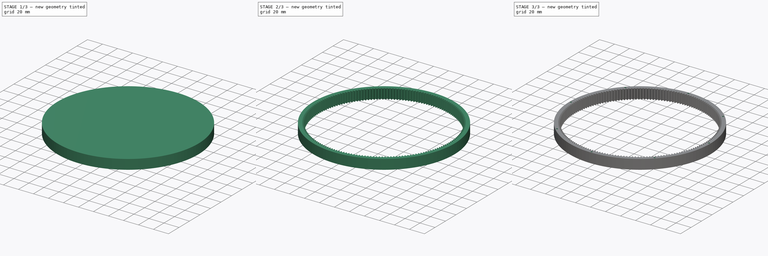
[diagram: build sequence overview — one tinted view per stage of 3, left to right]
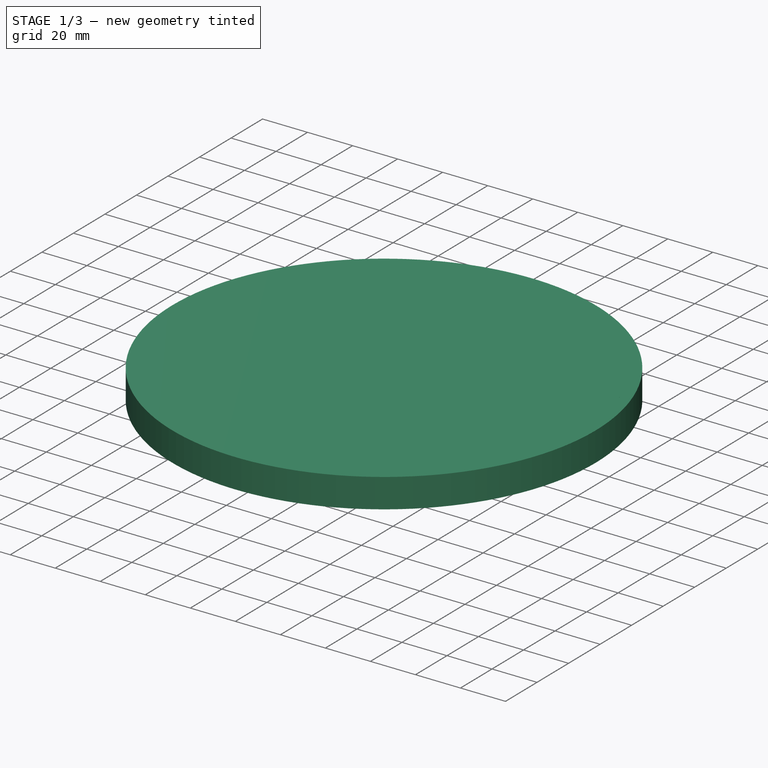
[diagram: stage 1 of 3 — iso view after this stage's code; geometry added in this stage tinted green]
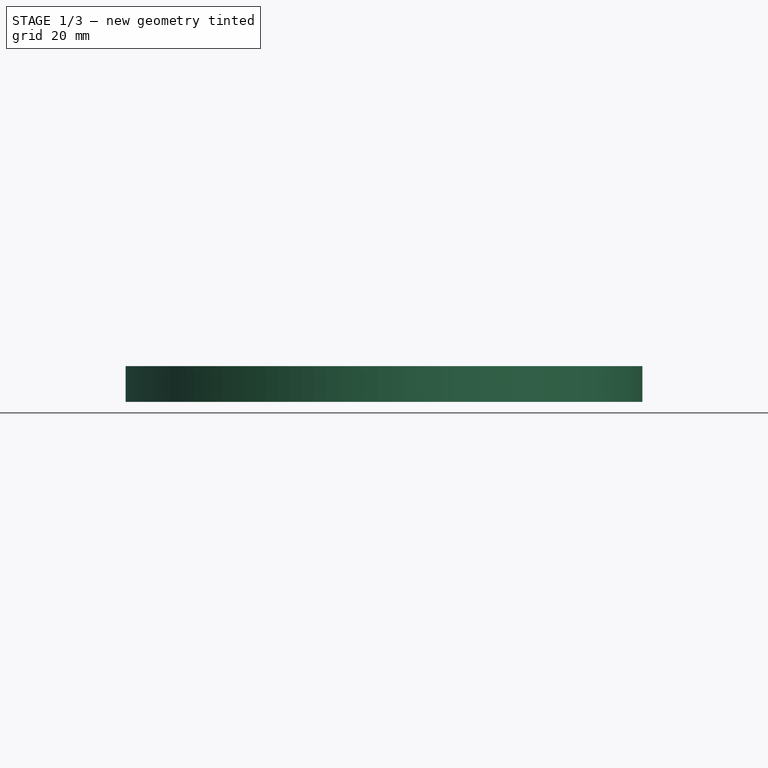
[diagram: stage 1 of 3 — front view after this stage's code; geometry added in this stage tinted green]
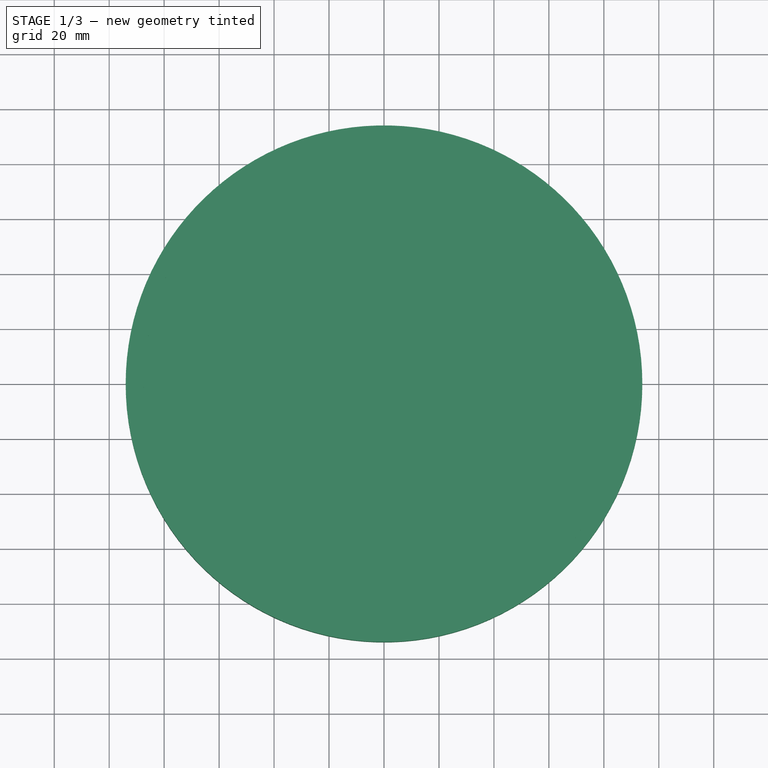
[diagram: stage 1 of 3 — top view after this stage's code; geometry added in this stage tinted green]
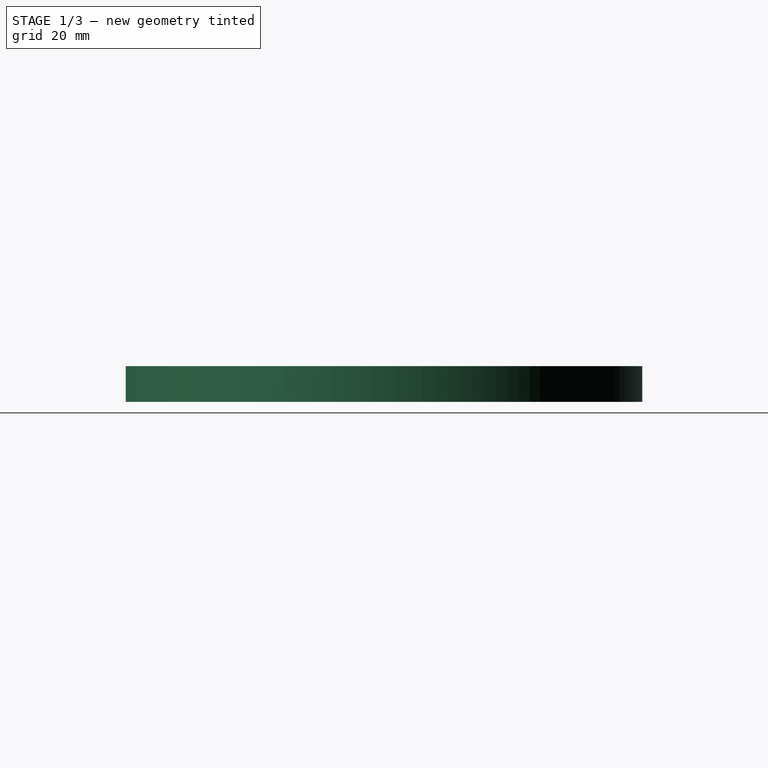
[diagram: stage 1 of 3 — right view after this stage's code; geometry added in this stage tinted green]
FCSTD DOCUMENT  (FreeCAD 0.19R24276 (Git))
Label: Out_gear_offset_0_3
License: All rights reserved
LicenseURL: http://en.wikipedia.org/wiki/All_rights_reserved
objects: Part::Part2DObjectPython×1, Part::Offset2D×1, Part::Extrusion×1, Part::Cylinder×1, Part::Cut×1, PartDesign::FeatureBase×1, Sketcher::SketchObject×1, PartDesign::Pocket×1, PartDesign::Body×1
note: 10 computed .brp shape members not serialized (recipe doc carries the construction recipe); baked Part::Feature solids carry a one-line shape summary decoded from their .brp

FEATURE [Part::Part2DObjectPython] InvoluteGear  # Draft 2D object (typed FeaturePython)
  ExternalGear = true
  HighPrecision = true
  Modules = 1
  NumberOfTeeth = 176
  PressureAngle = 20
FEATURE [Part::Offset2D] Offset2D  label="Offset2D_0,3"
  Fill = false
  Intersection = false
  Join = 0
  Mode = 1
  SelfIntersection = false
  Source = -> InvoluteGear
  Value = 0.3
FEATURE [Part::Extrusion] Extrude  label="Extrude_13"
  Base = -> Offset2D
  Dir = (0,0,-1)
  DirMode = 2
  FaceMakerClass = Part::FaceMakerBullseye
  LengthFwd = 13
  LengthRev = 0
  Reversed = true
  Solid = true
  Symmetric = false
FEATURE [Part::Cylinder] Cylinder  label="Цилиндр_13"
  Angle = 360
  AttacherType = Attacher::AttachEngine3D
  Height = 13
  Radius = 94
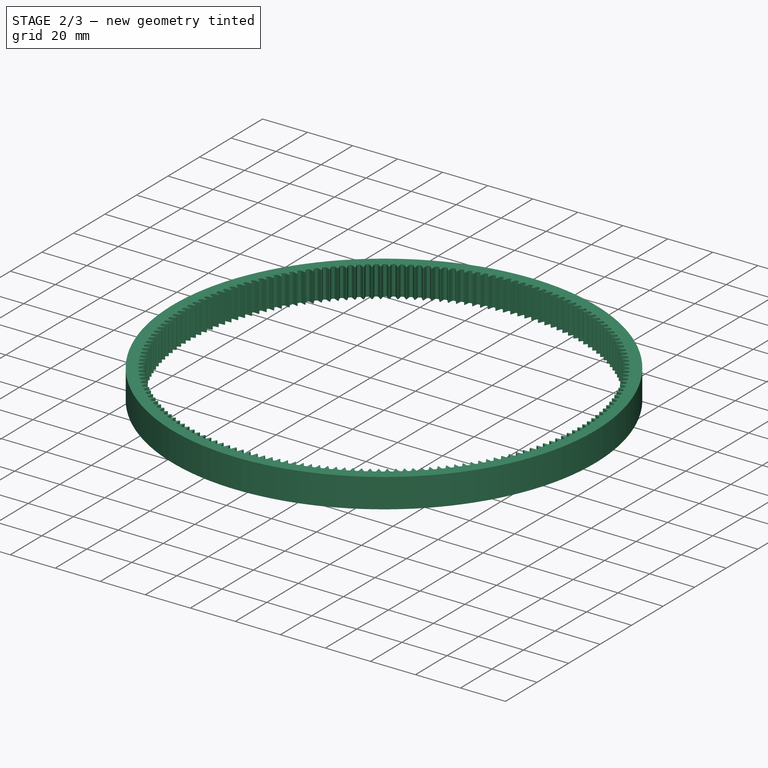
[diagram: stage 2 of 3 — iso view after this stage's code; geometry added in this stage tinted green]
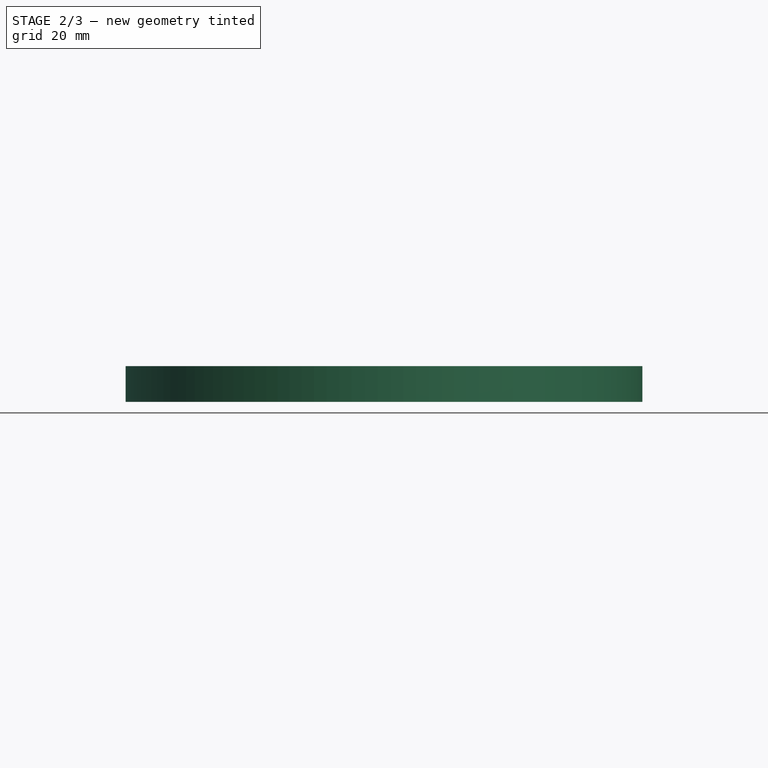
[diagram: stage 2 of 3 — front view after this stage's code; geometry added in this stage tinted green]
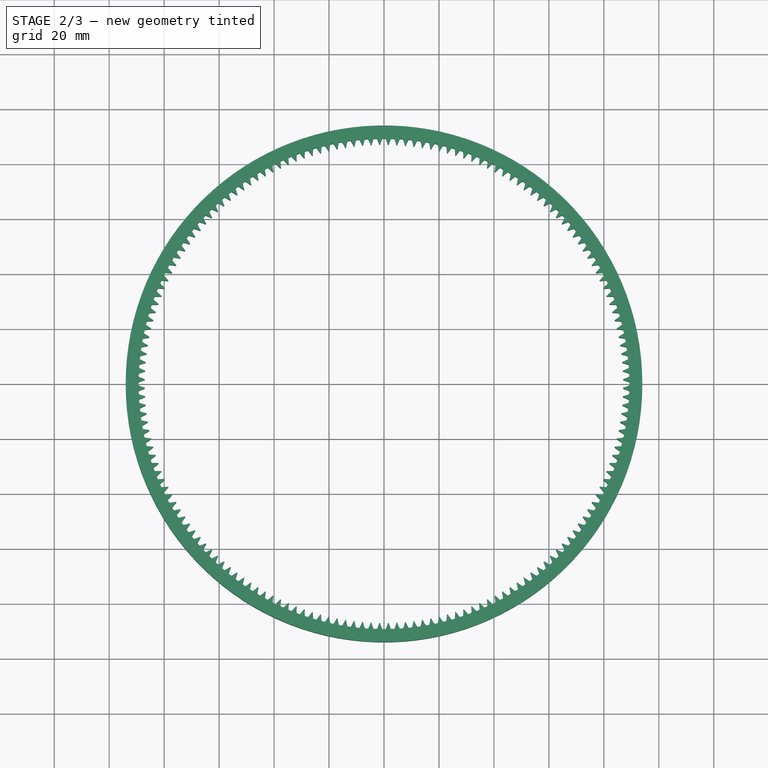
[diagram: stage 2 of 3 — top view after this stage's code; geometry added in this stage tinted green]
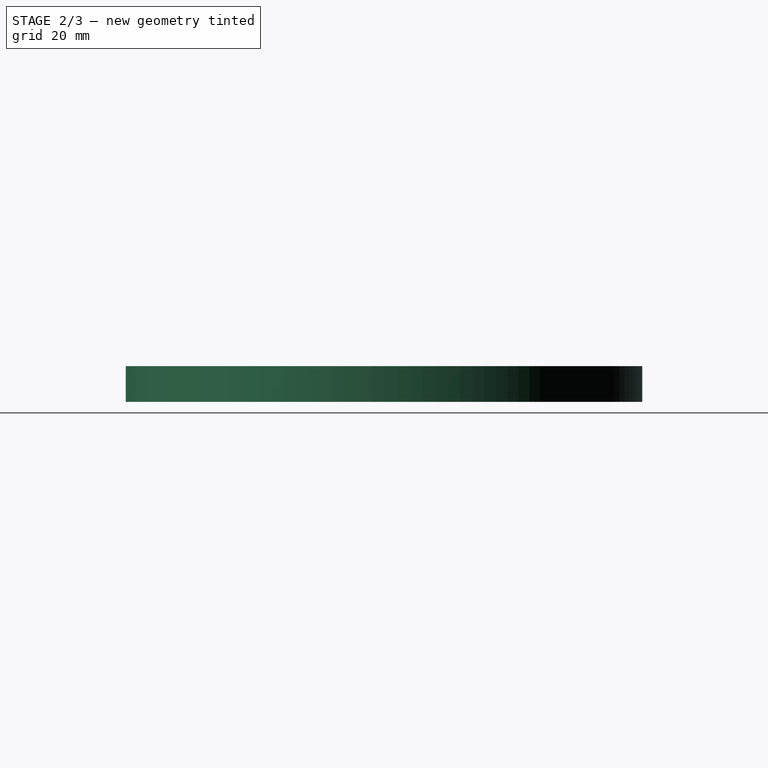
[diagram: stage 2 of 3 — right view after this stage's code; geometry added in this stage tinted green]
FEATURE [Part::Cut] Cut
  Base = -> Cylinder
  Tool = -> Extrude
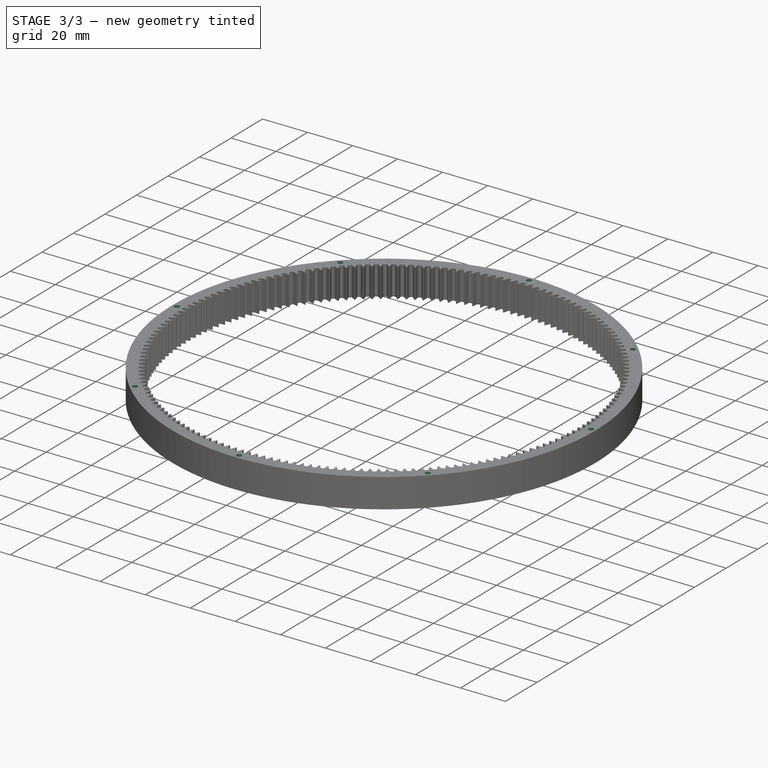
[diagram: stage 3 of 3 — iso view after this stage's code; geometry added in this stage tinted green]
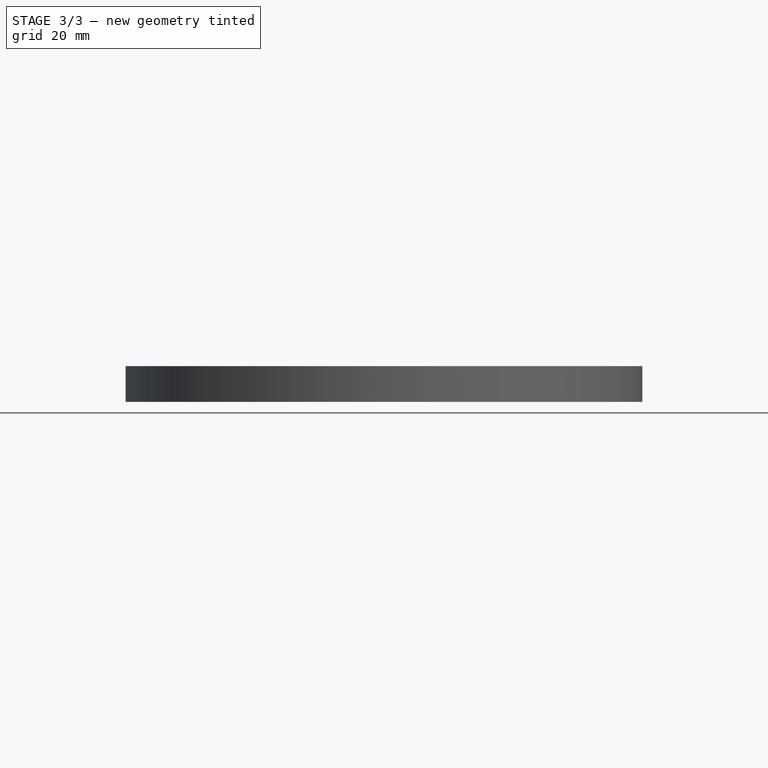
[diagram: stage 3 of 3 — front view after this stage's code; geometry added in this stage tinted green]
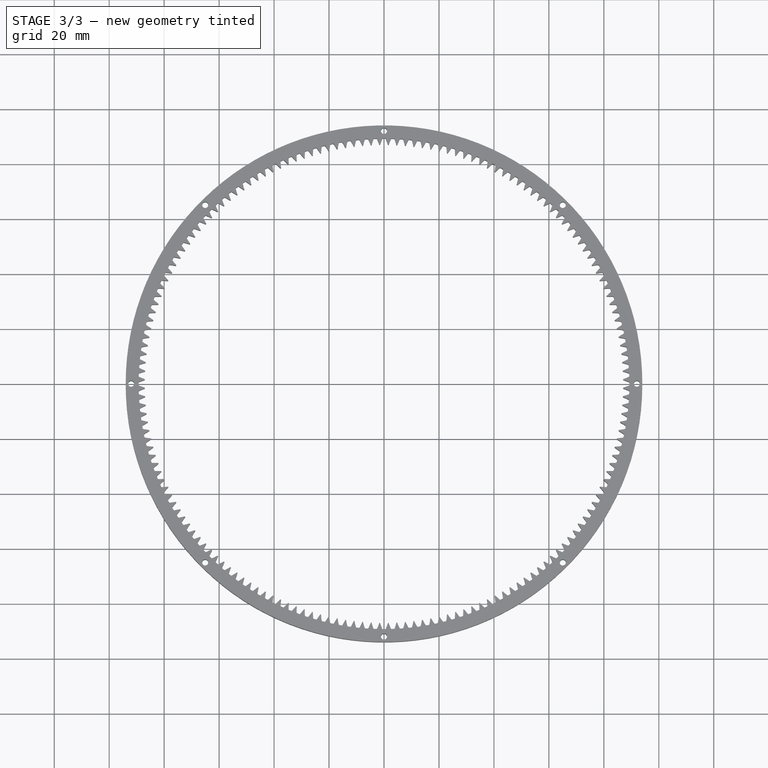
[diagram: stage 3 of 3 — top view after this stage's code; geometry added in this stage tinted green]
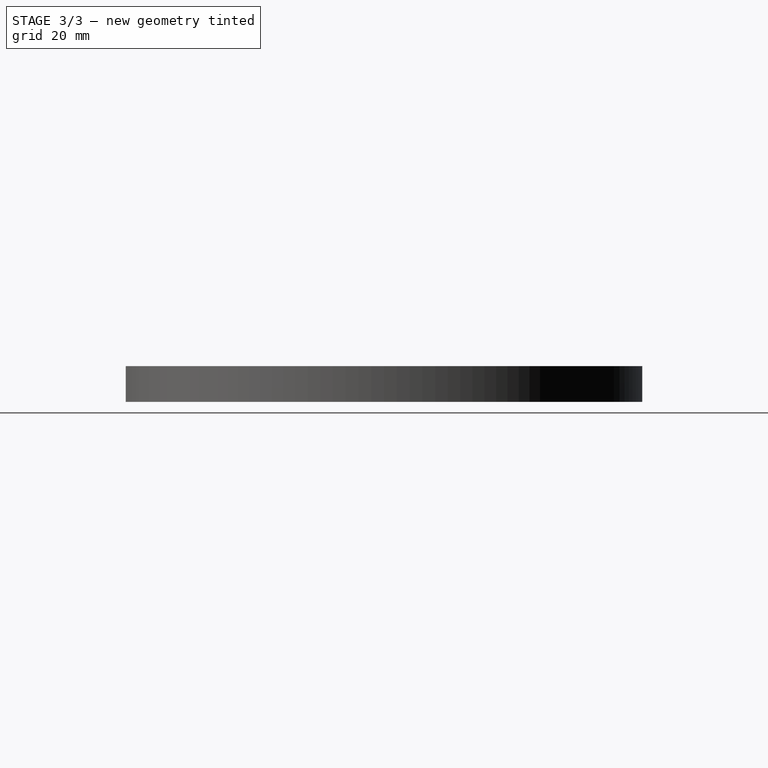
[diagram: stage 3 of 3 — right view after this stage's code; geometry added in this stage tinted green]
FEATURE [PartDesign::FeatureBase] BaseFeature
  BaseFeature = -> Cut
FEATURE [Sketcher::SketchObject] Sketch
  FullyConstrained = true
  MapMode = 5
  Placement = pos=(0,0,0) rot=(1,0,0;3.14159rad)
  Support = -> [BaseFeature]
  sketch-geometry (17):
    g0: LineSegment StartX=0 StartY=92 StartZ=0 EndX=-65.0538 EndY=65.0538 EndZ=0
    g1: LineSegment StartX=-65.0538 StartY=65.0538 StartZ=0 EndX=-92 EndY=0 EndZ=0
    g2: LineSegment StartX=-92 StartY=0 StartZ=0 EndX=-65.0538 EndY=-65.0538 EndZ=0
    g3: LineSegment StartX=-65.0538 StartY=-65.0538 StartZ=0 EndX=0 EndY=-92 EndZ=0
    g4: LineSegment StartX=0 StartY=-92 StartZ=0 EndX=65.0538 EndY=-65.0538 EndZ=0
    g5: LineSegment StartX=65.0538 StartY=-65.0538 StartZ=0 EndX=92 EndY=1.42e-14 EndZ=0
    g6: LineSegment StartX=92 StartY=1.42e-14 StartZ=0 EndX=65.0538 EndY=65.0538 EndZ=0
    g7: LineSegment StartX=65.0538 StartY=65.0538 StartZ=0 EndX=0 EndY=92 EndZ=0
    g8: Circle CenterX=0 CenterY=0 CenterZ=0 NormalX=0 NormalY=0 NormalZ=1 AngleXU=0 Radius=92
    g9: Circle CenterX=0 CenterY=92 CenterZ=0 NormalX=0 NormalY=0 NormalZ=1 AngleXU=0 Radius=1.1
    g10: Circle CenterX=65.0538 CenterY=65.0538 CenterZ=0 NormalX=0 NormalY=0 NormalZ=1 AngleXU=0 Radius=1.1
    g11: Circle CenterX=92 CenterY=1.42e-14 CenterZ=0 NormalX=0 NormalY=0 NormalZ=1 AngleXU=0 Radius=1.1
    g12: Circle CenterX=65.0538 CenterY=-65.0538 CenterZ=0 NormalX=0 NormalY=0 NormalZ=1 AngleXU=0 Radius=1.1
    g13: Circle CenterX=0 CenterY=-92 CenterZ=0 NormalX=0 NormalY=0 NormalZ=1 AngleXU=0 Radius=1.1
    g14: Circle CenterX=-65.0538 CenterY=-65.0538 CenterZ=0 NormalX=0 NormalY=0 NormalZ=1 AngleXU=0 Radius=1.1
    g15: Circle CenterX=-92 CenterY=0 CenterZ=0 NormalX=0 NormalY=0 NormalZ=1 AngleXU=0 Radius=1.1
    g16: Circle CenterX=-65.0538 CenterY=65.0538 CenterZ=0 NormalX=0 NormalY=0 NormalZ=1 AngleXU=0 Radius=1.1
  constraints (30):
    c: Coincident(g0,g1)
    c: Coincident(g1,g2)
    c: Coincident(g2,g3)
    c: Coincident(g3,g4)
    c: Coincident(g4,g5)
    c: Coincident(g5,g6)
    c: Coincident(g6,g7)
    c: Coincident(g7,g0)
    c: Equal(g0, g1-g7) x7
    c: PointOnObject(g0,g8)
    c: PointOnObject(g1,g8)
    c: PointOnObject(g2,g8)
    c: PointOnObject(g3,g8)
    c: PointOnObject(g4,g8)
    c: PointOnObject(g5,g8)
    c: PointOnObject(g6,g8)
    c: PointOnObject(g7,g8)
    c: Coincident(g8,g-1)
    c: PointOnObject(g7,g-2)
    c: Diameter(g8) = 184
    c: Coincident(g9,g0)
    c: Coincident(g10,g6)
    c: Coincident(g11,g5)
    c: Coincident(g12,g4)
    c: Coincident(g13,g3)
    c: Coincident(g14,g2)
    c: Coincident(g15,g1)
    c: Coincident(g16,g0)
    c: Diameter(g9) = 2.2
    c: Equal(g9, g10-g16) x7
FEATURE [PartDesign::Pocket] Pocket
  BaseFeature = -> BaseFeature
  Length = 5
  Length2 = 100
  Profile = -> Sketch
  Type = 1
FEATURE [PartDesign::Body] Body
  BaseFeature = -> Cut
  Group = -> [BaseFeature,Sketch,Pocket]
  Origin = -> Origin
  Tip = -> Pocket
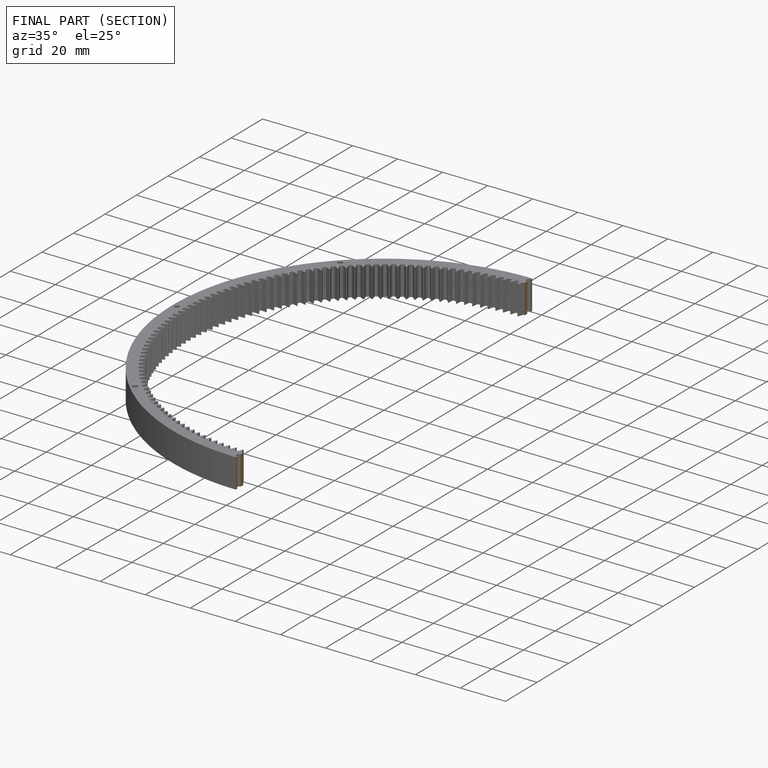
[diagram: finished part — half-section view (interior)]
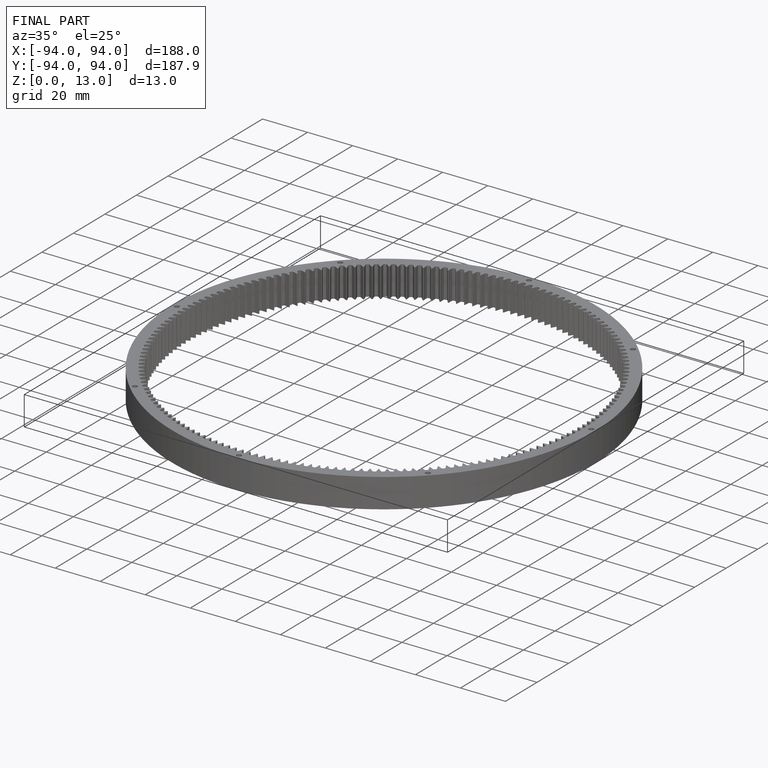
[diagram: finished part — iso view with bounding-box wireframe]
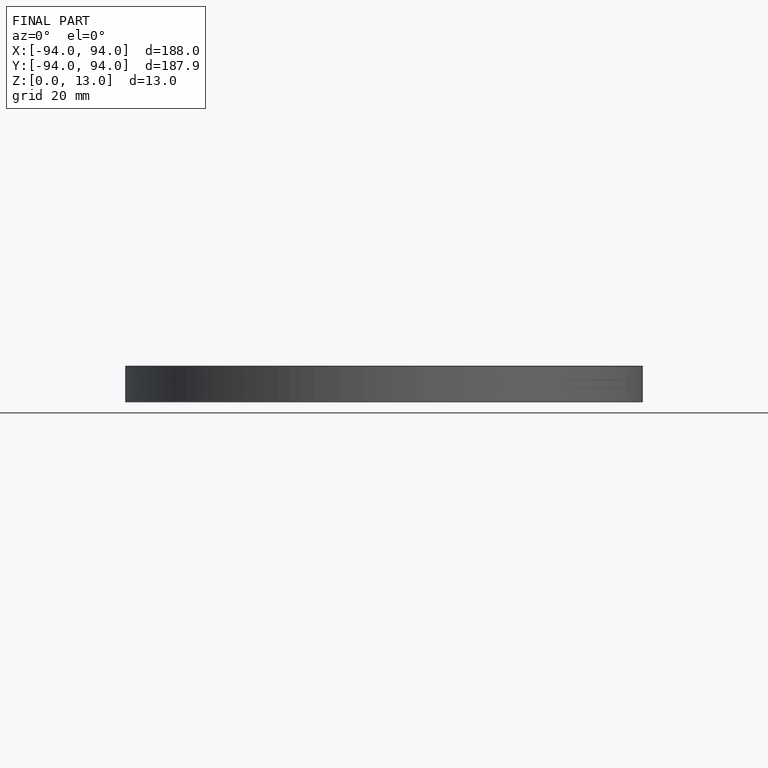
[diagram: finished part — front view with bounding-box wireframe]
